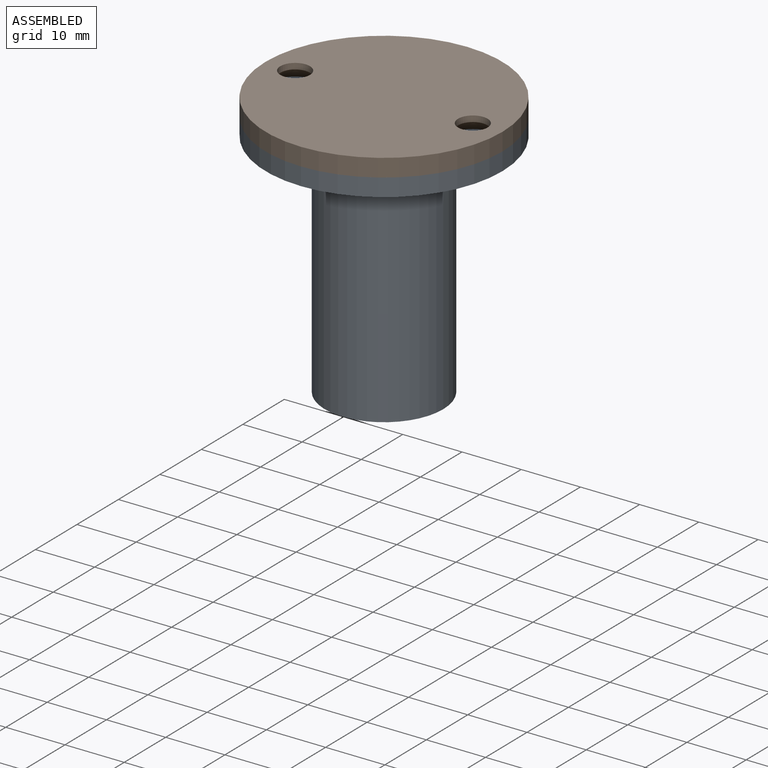
[diagram: assembled view]
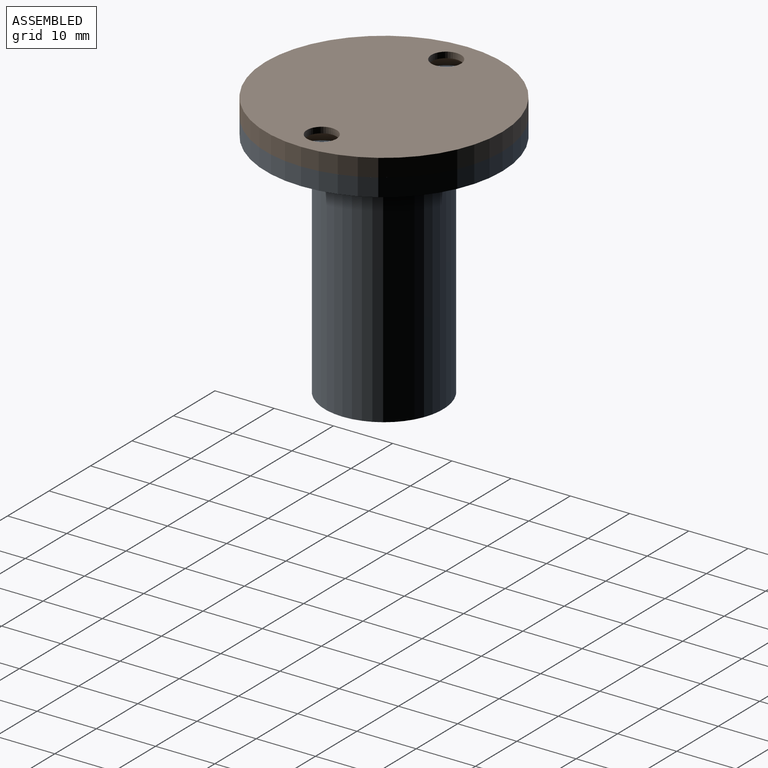
[diagram: assembled view, second angle]
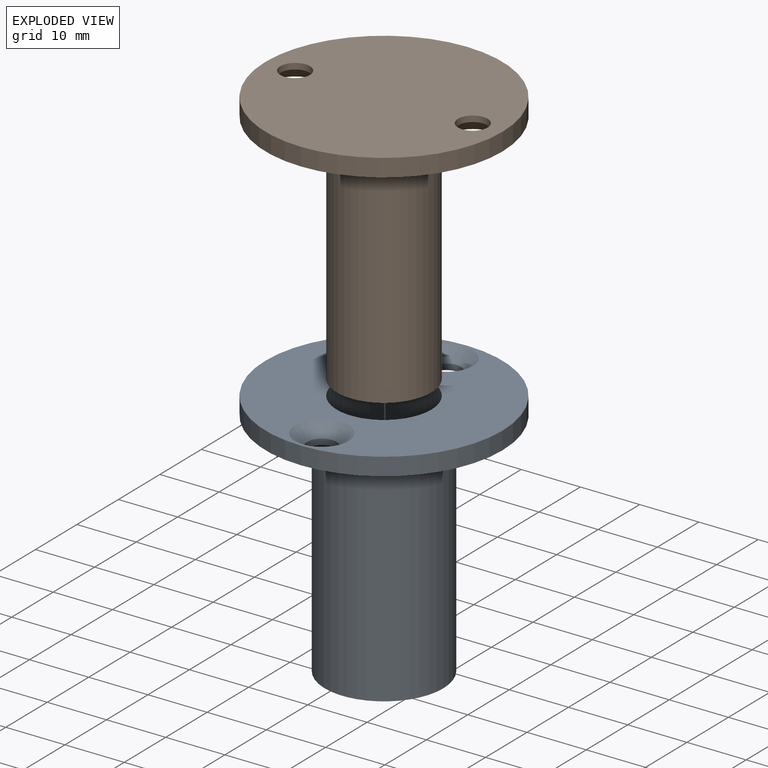
[diagram: exploded view]
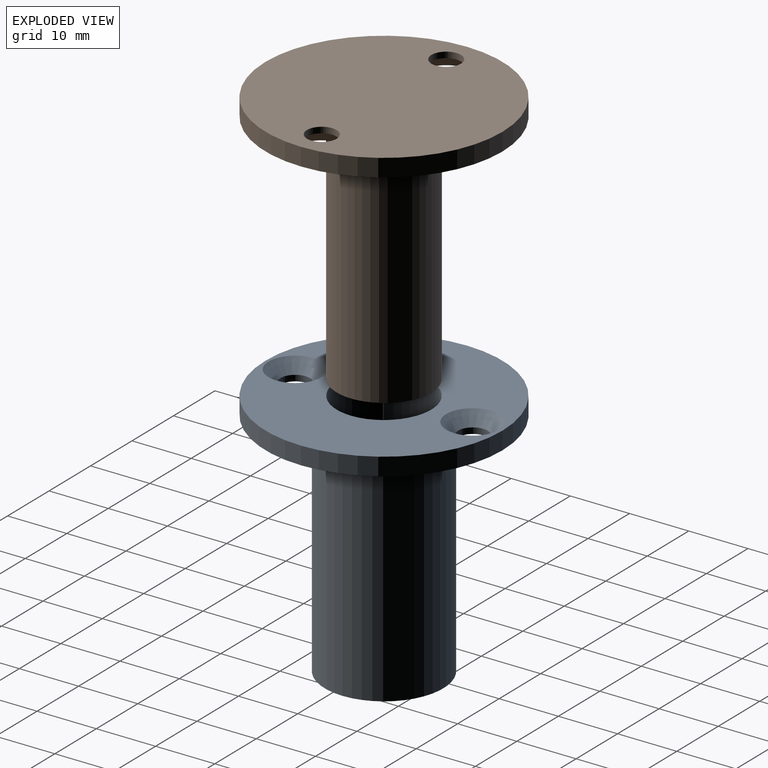
[diagram: exploded view, second angle]
ASSEMBLY  parts=2 mates=2
PART A: 10 faces, bbox 40x40x42 mm
  f0: cylinder r=2.5mm len=5mm, axis (0,0,-1), area 15.7mm2, adj f4,f5
  f1: cylinder r=2.5mm len=5mm, axis (0,0,-1), area 15.7mm2, adj f4,f6
  f2: cylinder r=20mm len=40mm, axis (0,0,-1), area 377mm2, adj f3,f4
  f3: plane 40x40mm, normal (0,0,1), area 928.3mm2, adj f2,f5,f6,f8
  f4: plane 40x40mm, normal (0,0,-1), area 903.2mm2, adj f0,f1,f2,f7
  f5: cone r=4.5mm half-angle=45deg, axis (0,0,1), area 62.2mm2, adj f0,f3
  f6: cone r=2.5mm half-angle=45deg, axis (0,0,1), area 62.2mm2, adj f1,f3
  f7: cylinder r=10mm len=39mm, axis (0,0,1), area 2450.4mm2, adj f4,f9
  f8: cylinder r=8mm len=42mm, axis (0,0,1), area 2111.2mm2, adj f3,f9
  f9: plane 20x20mm, normal (0,0,-1), area 113.1mm2, adj f7,f8
PART B: 9 faces, bbox 40x40x43 mm
  f0: cylinder r=2.5mm len=5mm, axis (0,0,-1), area 15.7mm2, adj f3,f7
  f1: cylinder r=20mm len=40mm, axis (0,0,-1), area 377mm2, adj f3,f4
  f2: cylinder r=2.5mm len=5mm, axis (0,0,-1), area 15.7mm2, adj f3,f8
  f3: plane 40x40mm, normal (0,0,1), area 1217.4mm2, adj f0,f1,f2
  f4: plane 40x40mm, normal (0,0,-1), area 928.3mm2, adj f1,f6,f7,f8
  f5: plane 16x16mm, normal (0,0,-1), area 201.1mm2, adj f6
  f6: cylinder r=8mm len=40mm, axis (0,0,-1), area 2010.6mm2, adj f4,f5
  f7: cone r=4.5mm half-angle=45deg, axis (0,0,-1), area 62.2mm2, adj f0,f4
  f8: cone r=2.5mm half-angle=45deg, axis (0,0,-1), area 62.2mm2, adj f2,f4
PLACE A t=(-36.34,-26.87,20.89)mm
PLACE B rot(axis=(0,0,-1),90deg) t=(-36.34,-26.87,23.89)mm
MATE revolute B.f6 <-> A.f8  axis (0,0,-1) through (-36.34,-26.87,23.89)mm
MATE revolute B.f1 <-> B.f1  axis (0,0,1) through (-36.34,-26.87,26.89)mm
